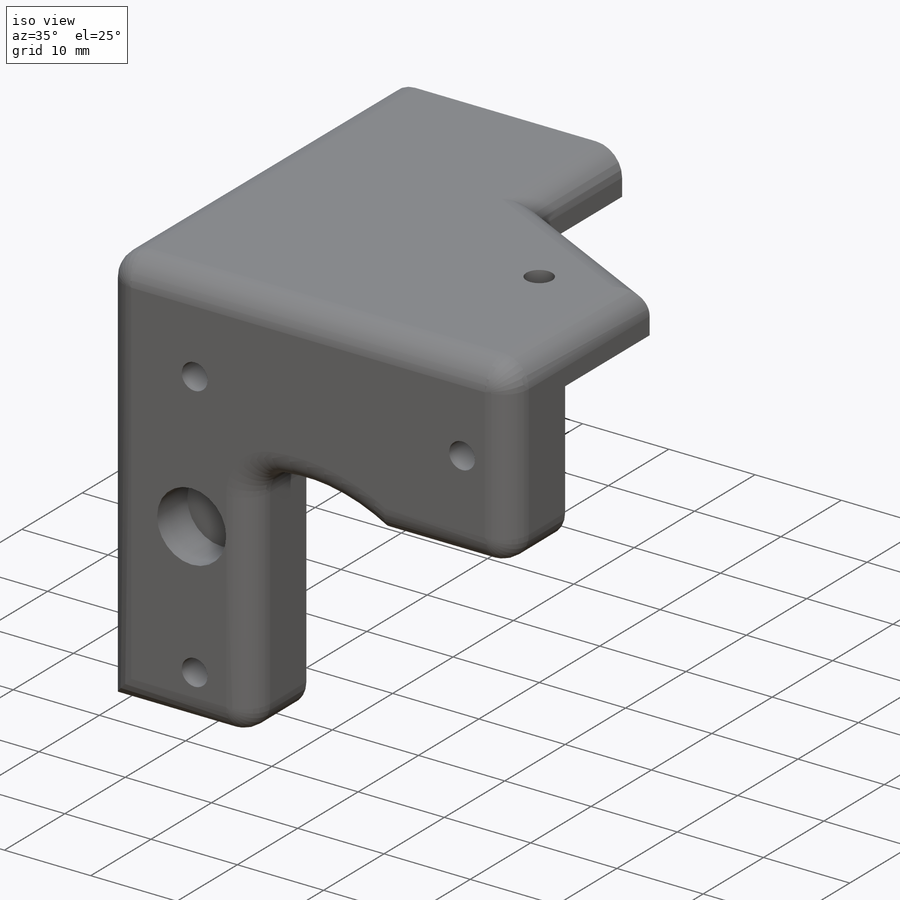
[diagram: iso view]
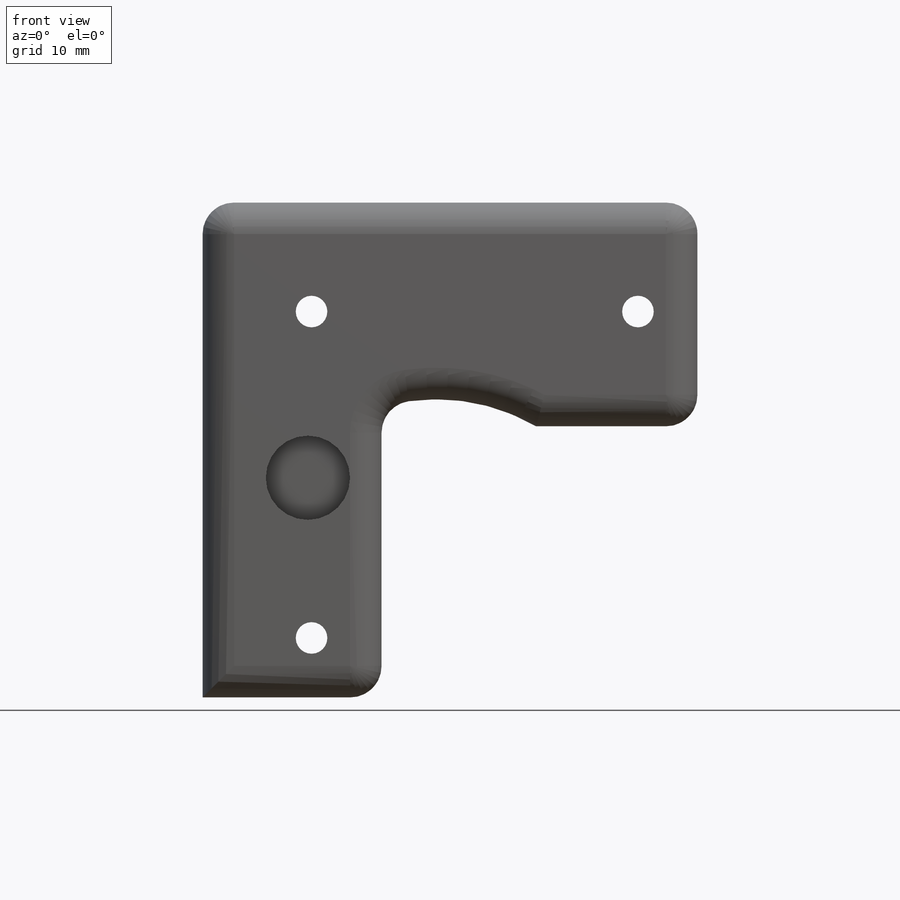
[diagram: front view]
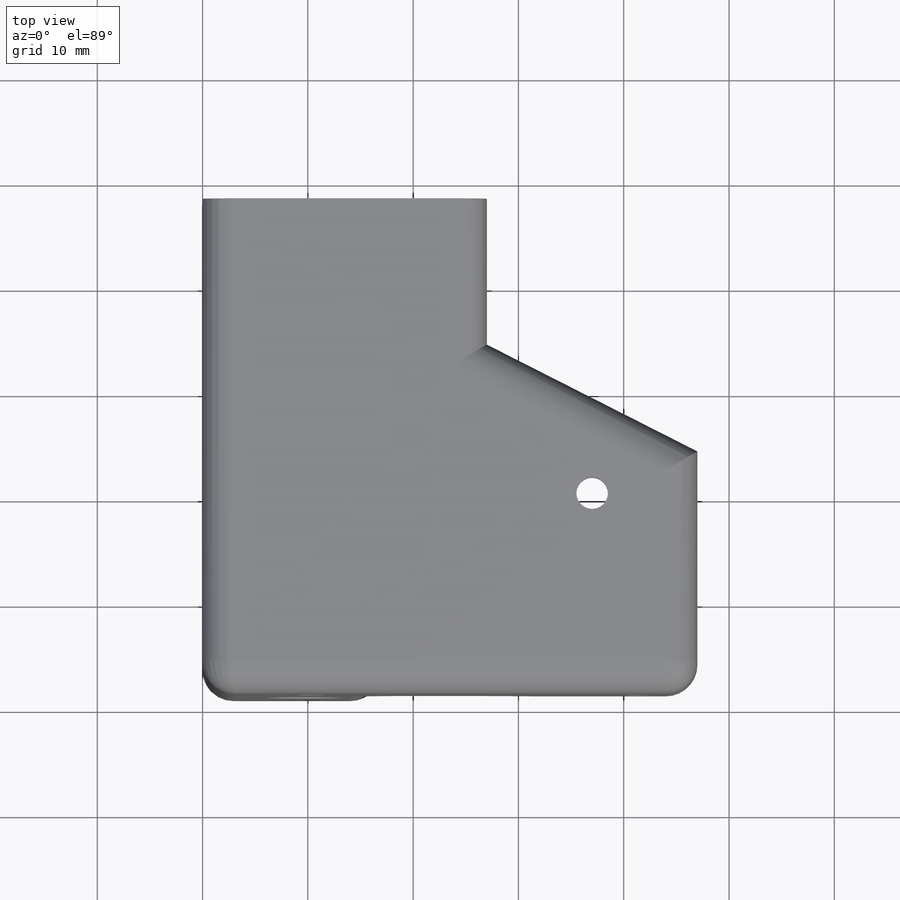
[diagram: top view]
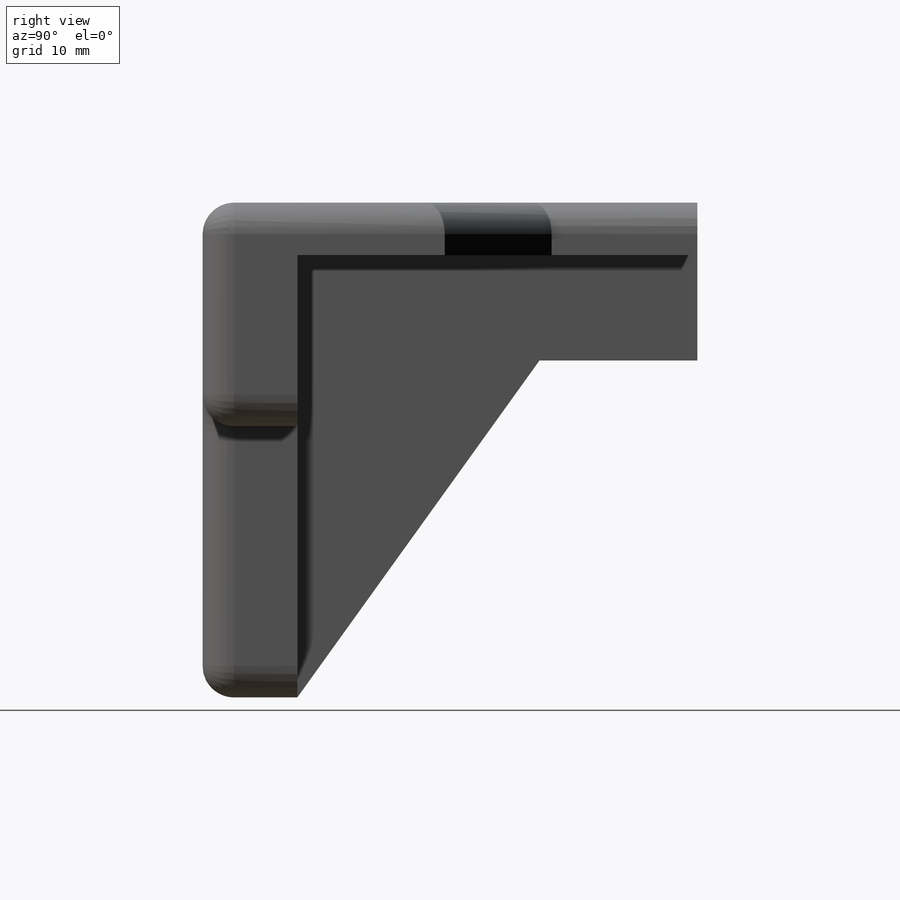
[diagram: right view]
SOLIDWORKS PART (.sldprt)
format: sldprt  version: not decoded by parser v0  size: 337,920 bytes
history: native  units: mm
features: sketch x9, cut_extrude x6, extrude x3, material x1, fillet x1 (+13 scaffold rows collapsed)
feature tree (33):
  scaffold x13  (default folders/planes/origin — collapsed)
  material  "Material <not specified>"
  sketch  "Sketch2"  dims[D1=47.0mm D2=47.0mm D3=21.25mm D4=17.0mm D5=27.58mm D6=15.32mm D7=27.68mm]
  extrude  "Boss-Extrude1"  Depth=9mm
  sketch  "Sketch3"  dims[c1.D1=3.0mm c1.D5=3.0mm c1.D6=3.0mm c1.D2=5.65mm c1.D3=10.35mm c1.D4=31.0mm c2.D5=10.35mm c2.D7=31.0mm c2.D8=~31.000012mm c3.D7=10.35mm c3.D8=31.0mm]
  cut_extrude  "Cut-Extrude1"  Depth=10mm
  sketch  "Sketch8"  dims[D1=5.0mm]
  extrude  "Boss-Extrude2"  Depth=38mm
  sketch  "Sketch9"  dims[D1=5.0mm]
  extrude  "Boss-Extrude3"  Depth=38mm
  sketch  "Sketch10"  dims[D1=15.0mm D2=15.0mm]
  cut_extrude  "Cut-Extrude2"  Depth=38mm
  sketch  "Sketch11"  dims[c1.D1=8.0mm c1.D2=10.0mm c1.D3=26.15mm c1.D4=20.85mm c2.D3=26.15mm]
  cut_extrude  "Cut-Extrude3"  Depth=5mm
  sketch  "Sketch12"  dims[D1=14.0mm D2=20.0mm]
  cut_extrude  "Cut-Extrude4"  Depth=10mm
  sketch  "Sketch13"  dims[D1=3.0mm D2=10.0mm D3=10.0mm]
  cut_extrude  "Cut-Extrude5"  [1 undecoded]
  sketch  "Sketch14"  dims[D1=6.0mm]
  cut_extrude  "Cut-Extrude6"  Depth=2mm
  fillet  "Fillet1"  Radius=3mm
decode coverage: 18 of 19 modeling features carry decoded parameters
note: ~ marks probable driven/reference dimensions
note: 1 parameter value undecoded
note: suppression state not decoded; provenance and decode notes live in map.json
